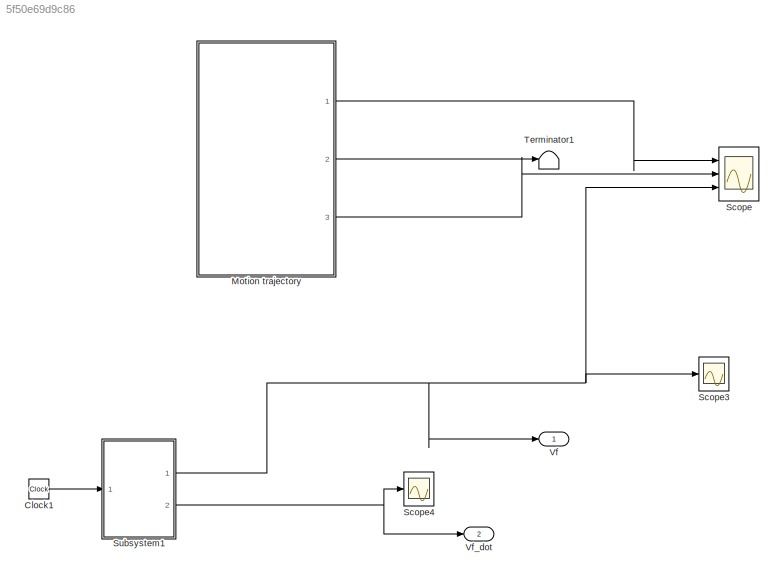
MODEL slx_5f50e69d9c86
KIND model
CONFIG AbsTol = auto
CONFIG EnableMultiTasking = off
CONFIG FixedStep = 1e-3
CONFIG MaxStep = 1e-1
CONFIG MinStep = auto
CONFIG RelTol = 1e-3
CONFIG SampleTimeConstraint = Unconstrained
CONFIG SolverName = VariableStepAuto
CONFIG StartTime = 0.0
CONFIG StopTime = 200
BLOCK [Clock] Clock1
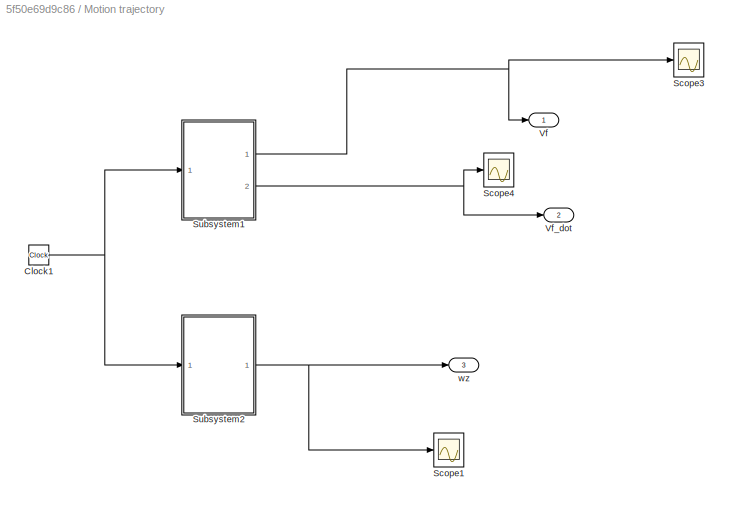
BLOCK [SubSystem] Motion trajectory
  Ports = [0, 3]
  RequestExecContextInheritance = off
BLOCK [Clock] Motion trajectory/Clock1
BLOCK [Scope] Motion trajectory/Scope1
  Floating = off
  NumInputPorts = 1
  Ports = [1]
  ScopeSpecificationString = Simulink.scopes.TimeScopeBlockCfg('CurrentConfiguration', extmgr.ConfigurationSet(extmgr.Configuration('Core','General UI',true),extmgr.Configuration('Core','Source UI',true),extmgr.Configuration('Sources','WiredSimulink',true,'DataLoggingVariableName','ScopeData1'),extmgr.Configuration('Visuals','Time Domain',true,'SerializedDisplays',{struct('MinYLimReal','-0.58333','MaxYLimReal','0.58333','YLab...<+1486ch>
BLOCK [Scope] Motion trajectory/Scope3
  Floating = off
  NumInputPorts = 1
  Ports = [1]
  ScopeSpecificationString = Simulink.scopes.TimeScopeBlockCfg('CurrentConfiguration', extmgr.ConfigurationSet(extmgr.Configuration('Core','General UI',true),extmgr.Configuration('Core','Source UI',true),extmgr.Configuration('Sources','WiredSimulink',true,'DataLoggingVariableName','ScopeData1'),extmgr.Configuration('Visuals','Time Domain',true,'SerializedDisplays',{struct('MinYLimReal','-1.01629','MaxYLimReal','9.14659','YLab...<+1489ch>
BLOCK [Scope] Motion trajectory/Scope4
  Floating = off
  NumInputPorts = 1
  Ports = [1]
  ScopeSpecificationString = Simulink.scopes.TimeScopeBlockCfg('CurrentConfiguration', extmgr.ConfigurationSet(extmgr.Configuration('Core','General UI',true),extmgr.Configuration('Core','Source UI',true),extmgr.Configuration('Sources','WiredSimulink',true,'DataLoggingVariableName','ScopeData2'),extmgr.Configuration('Visuals','Time Domain',true,'SerializedDisplays',{struct('MinYLimReal','-3.44501','MaxYLimReal','3.58278','YLab...<+1501ch>
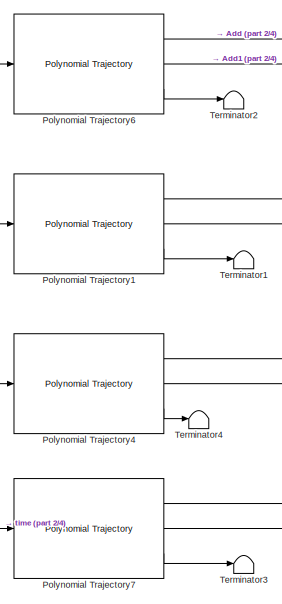
[diagram: Motion trajectory/Subsystem1 - part 1/4, top center region]
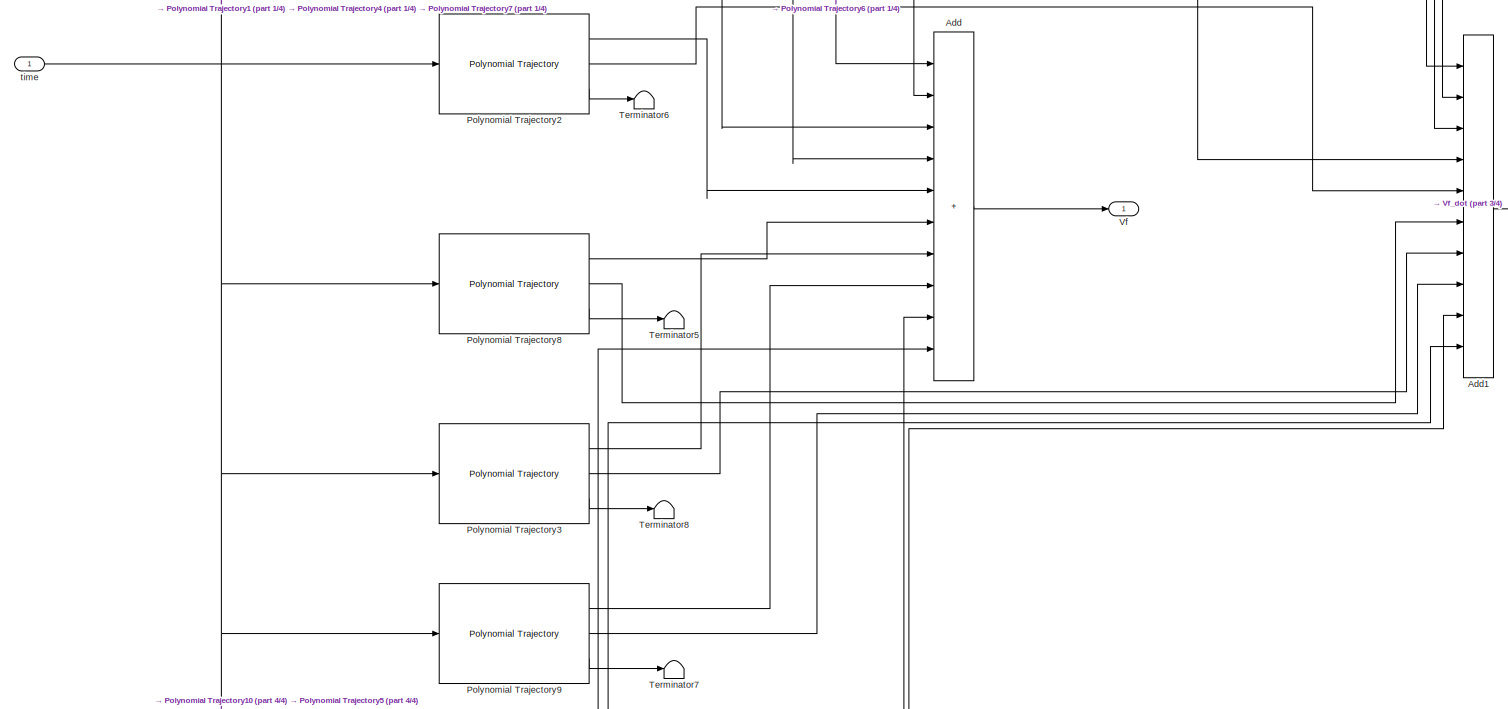
[diagram: Motion trajectory/Subsystem1 - part 2/4, full width, middle band]
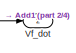
[diagram: Motion trajectory/Subsystem1 - part 3/4, middle right region]
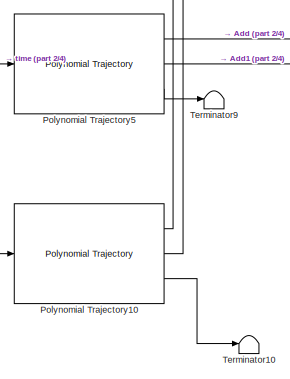
[diagram: Motion trajectory/Subsystem1 - part 4/4, bottom center region]
BLOCK [SubSystem] Motion trajectory/Subsystem1
  Ports = [1, 2]
  RequestExecContextInheritance = off
BLOCK [Sum] Motion trajectory/Subsystem1/Add
  IconShape = rectangular
  Inputs = ++++++++++
  Ports = [10, 1]
BLOCK [Sum] Motion trajectory/Subsystem1/Add1
  IconShape = rectangular
  Inputs = ++++++++++
  Ports = [10, 1]
BLOCK [Reference] Motion trajectory/Subsystem1/Polynomial Trajectory1  REF=robotcorelib/Polynomial Trajectory
  Ports = [1, 3]
  SourceBlock = robotcorelib/Polynomial Trajectory
  SourceProductBaseCode = NV,RO,RR,UV
  SourceType = robotics.slcore.internal.block.PolyTrajSys
BLOCK [Reference] Motion trajectory/Subsystem1/Polynomial Trajectory10  REF=robotcorelib/Polynomial Trajectory
  Ports = [1, 3]
  SourceBlock = robotcorelib/Polynomial Trajectory
  SourceProductBaseCode = NV,RO,RR,UV
  SourceType = robotics.slcore.internal.block.PolyTrajSys
BLOCK [Reference] Motion trajectory/Subsystem1/Polynomial Trajectory2  REF=robotcorelib/Polynomial Trajectory
  Ports = [1, 3]
  SourceBlock = robotcorelib/Polynomial Trajectory
  SourceProductBaseCode = NV,RO,RR,UV
  SourceType = robotics.slcore.internal.block.PolyTrajSys
BLOCK [Reference] Motion trajectory/Subsystem1/Polynomial Trajectory3  REF=robotcorelib/Polynomial Trajectory
  Ports = [1, 3]
  SourceBlock = robotcorelib/Polynomial Trajectory
  SourceProductBaseCode = NV,RO,RR,UV
  SourceType = robotics.slcore.internal.block.PolyTrajSys
BLOCK [Reference] Motion trajectory/Subsystem1/Polynomial Trajectory4  REF=robotcorelib/Polynomial Trajectory
  Ports = [1, 3]
  SourceBlock = robotcorelib/Polynomial Trajectory
  SourceProductBaseCode = NV,RO,RR,UV
  SourceType = robotics.slcore.internal.block.PolyTrajSys
BLOCK [Reference] Motion trajectory/Subsystem1/Polynomial Trajectory5  REF=robotcorelib/Polynomial Trajectory
  Ports = [1, 3]
  SourceBlock = robotcorelib/Polynomial Trajectory
  SourceProductBaseCode = NV,RO,RR,UV
  SourceType = robotics.slcore.internal.block.PolyTrajSys
BLOCK [Reference] Motion trajectory/Subsystem1/Polynomial Trajectory6  REF=robotcorelib/Polynomial Trajectory
  Ports = [1, 3]
  SourceBlock = robotcorelib/Polynomial Trajectory
  SourceProductBaseCode = NV,RO,RR,UV
  SourceType = robotics.slcore.internal.block.PolyTrajSys
BLOCK [Reference] Motion trajectory/Subsystem1/Polynomial Trajectory7  REF=robotcorelib/Polynomial Trajectory
  Ports = [1, 3]
  SourceBlock = robotcorelib/Polynomial Trajectory
  SourceProductBaseCode = NV,RO,RR,UV
  SourceType = robotics.slcore.internal.block.PolyTrajSys
BLOCK [Reference] Motion trajectory/Subsystem1/Polynomial Trajectory8  REF=robotcorelib/Polynomial Trajectory
  Ports = [1, 3]
  SourceBlock = robotcorelib/Polynomial Trajectory
  SourceProductBaseCode = NV,RO,RR,UV
  SourceType = robotics.slcore.internal.block.PolyTrajSys
BLOCK [Reference] Motion trajectory/Subsystem1/Polynomial Trajectory9  REF=robotcorelib/Polynomial Trajectory
  Ports = [1, 3]
  SourceBlock = robotcorelib/Polynomial Trajectory
  SourceProductBaseCode = NV,RO,RR,UV
  SourceType = robotics.slcore.internal.block.PolyTrajSys
BLOCK [Terminator] Motion trajectory/Subsystem1/Terminator1
BLOCK [Terminator] Motion trajectory/Subsystem1/Terminator10
BLOCK [Terminator] Motion trajectory/Subsystem1/Terminator2
BLOCK [Terminator] Motion trajectory/Subsystem1/Terminator3
BLOCK [Terminator] Motion trajectory/Subsystem1/Terminator4
BLOCK [Terminator] Motion trajectory/Subsystem1/Terminator5
BLOCK [Terminator] Motion trajectory/Subsystem1/Terminator6
BLOCK [Terminator] Motion trajectory/Subsystem1/Terminator7
BLOCK [Terminator] Motion trajectory/Subsystem1/Terminator8
BLOCK [Terminator] Motion trajectory/Subsystem1/Terminator9
BLOCK [Outport] Motion trajectory/Subsystem1/Vf
BLOCK [Outport] Motion trajectory/Subsystem1/Vf_dot
  Port = 2
BLOCK [Inport] Motion trajectory/Subsystem1/time
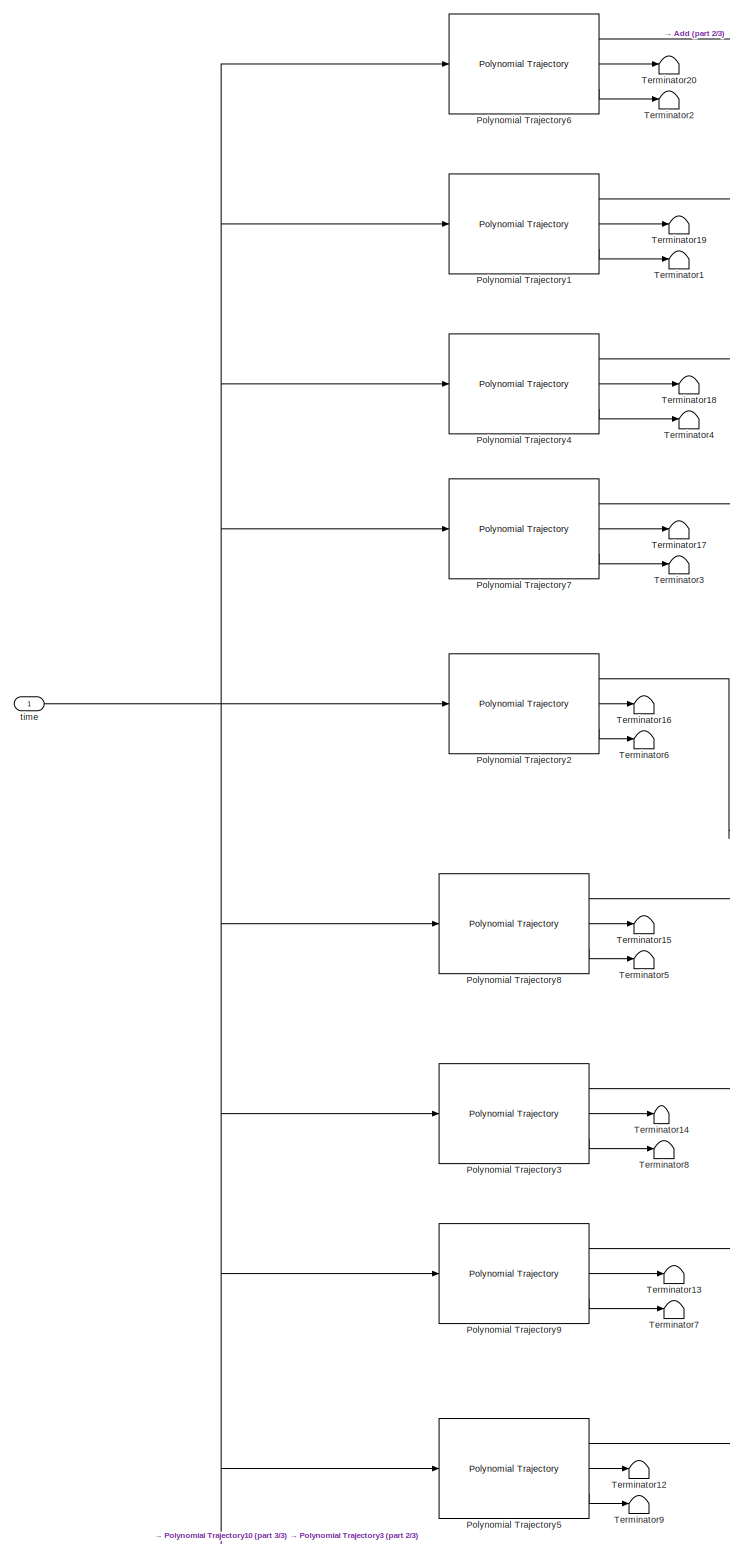
[diagram: Motion trajectory/Subsystem2 - part 1/3, left side, full height]
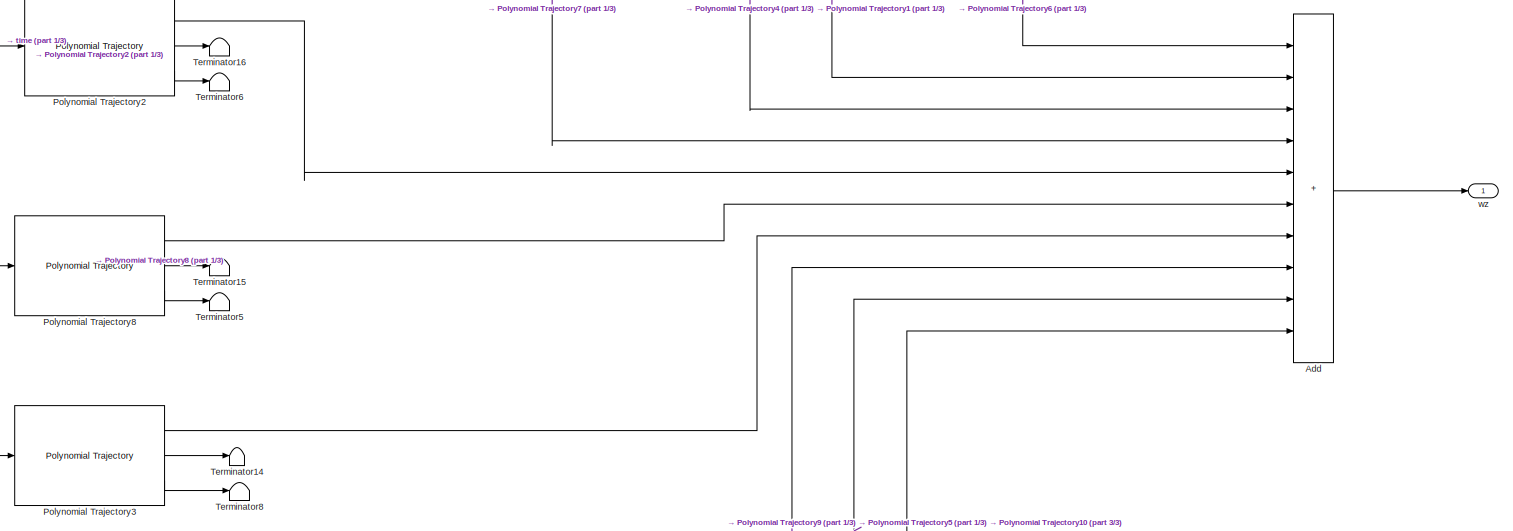
[diagram: Motion trajectory/Subsystem2 - part 2/3, full width, middle band]
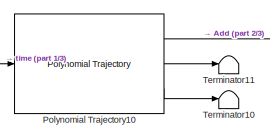
[diagram: Motion trajectory/Subsystem2 - part 3/3, bottom left region]
BLOCK [SubSystem] Motion trajectory/Subsystem2
  Ports = [1, 1]
  RequestExecContextInheritance = off
BLOCK [Sum] Motion trajectory/Subsystem2/Add
  IconShape = rectangular
  Inputs = ++++++++++
  Ports = [10, 1]
BLOCK [Reference] Motion trajectory/Subsystem2/Polynomial Trajectory1  REF=robotcorelib/Polynomial Trajectory
  Ports = [1, 3]
  SourceBlock = robotcorelib/Polynomial Trajectory
  SourceProductBaseCode = NV,RO,RR,UV
  SourceType = robotics.slcore.internal.block.PolyTrajSys
BLOCK [Reference] Motion trajectory/Subsystem2/Polynomial Trajectory10  REF=robotcorelib/Polynomial Trajectory
  Ports = [1, 3]
  SourceBlock = robotcorelib/Polynomial Trajectory
  SourceProductBaseCode = NV,RO,RR,UV
  SourceType = robotics.slcore.internal.block.PolyTrajSys
BLOCK [Reference] Motion trajectory/Subsystem2/Polynomial Trajectory2  REF=robotcorelib/Polynomial Trajectory
  Ports = [1, 3]
  SourceBlock = robotcorelib/Polynomial Trajectory
  SourceProductBaseCode = NV,RO,RR,UV
  SourceType = robotics.slcore.internal.block.PolyTrajSys
BLOCK [Reference] Motion trajectory/Subsystem2/Polynomial Trajectory3  REF=robotcorelib/Polynomial Trajectory
  Ports = [1, 3]
  SourceBlock = robotcorelib/Polynomial Trajectory
  SourceProductBaseCode = NV,RO,RR,UV
  SourceType = robotics.slcore.internal.block.PolyTrajSys
BLOCK [Reference] Motion trajectory/Subsystem2/Polynomial Trajectory4  REF=robotcorelib/Polynomial Trajectory
  Ports = [1, 3]
  SourceBlock = robotcorelib/Polynomial Trajectory
  SourceProductBaseCode = NV,RO,RR,UV
  SourceType = robotics.slcore.internal.block.PolyTrajSys
BLOCK [Reference] Motion trajectory/Subsystem2/Polynomial Trajectory5  REF=robotcorelib/Polynomial Trajectory
  Ports = [1, 3]
  SourceBlock = robotcorelib/Polynomial Trajectory
  SourceProductBaseCode = NV,RO,RR,UV
  SourceType = robotics.slcore.internal.block.PolyTrajSys
BLOCK [Reference] Motion trajectory/Subsystem2/Polynomial Trajectory6  REF=robotcorelib/Polynomial Trajectory
  Ports = [1, 3]
  SourceBlock = robotcorelib/Polynomial Trajectory
  SourceProductBaseCode = NV,RO,RR,UV
  SourceType = robotics.slcore.internal.block.PolyTrajSys
BLOCK [Reference] Motion trajectory/Subsystem2/Polynomial Trajectory7  REF=robotcorelib/Polynomial Trajectory
  Ports = [1, 3]
  SourceBlock = robotcorelib/Polynomial Trajectory
  SourceProductBaseCode = NV,RO,RR,UV
  SourceType = robotics.slcore.internal.block.PolyTrajSys
BLOCK [Reference] Motion trajectory/Subsystem2/Polynomial Trajectory8  REF=robotcorelib/Polynomial Trajectory
  Ports = [1, 3]
  SourceBlock = robotcorelib/Polynomial Trajectory
  SourceProductBaseCode = NV,RO,RR,UV
  SourceType = robotics.slcore.internal.block.PolyTrajSys
BLOCK [Reference] Motion trajectory/Subsystem2/Polynomial Trajectory9  REF=robotcorelib/Polynomial Trajectory
  Ports = [1, 3]
  SourceBlock = robotcorelib/Polynomial Trajectory
  SourceProductBaseCode = NV,RO,RR,UV
  SourceType = robotics.slcore.internal.block.PolyTrajSys
BLOCK [Terminator] Motion trajectory/Subsystem2/Terminator1
BLOCK [Terminator] Motion trajectory/Subsystem2/Terminator10
BLOCK [Terminator] Motion trajectory/Subsystem2/Terminator11
BLOCK [Terminator] Motion trajectory/Subsystem2/Terminator12
BLOCK [Terminator] Motion trajectory/Subsystem2/Terminator13
BLOCK [Terminator] Motion trajectory/Subsystem2/Terminator14
BLOCK [Terminator] Motion trajectory/Subsystem2/Terminator15
BLOCK [Terminator] Motion trajectory/Subsystem2/Terminator16
BLOCK [Terminator] Motion trajectory/Subsystem2/Terminator17
BLOCK [Terminator] Motion trajectory/Subsystem2/Terminator18
BLOCK [Terminator] Motion trajectory/Subsystem2/Terminator19
BLOCK [Terminator] Motion trajectory/Subsystem2/Terminator2
BLOCK [Terminator] Motion trajectory/Subsystem2/Terminator20
BLOCK [Terminator] Motion trajectory/Subsystem2/Terminator3
BLOCK [Terminator] Motion trajectory/Subsystem2/Terminator4
BLOCK [Terminator] Motion trajectory/Subsystem2/Terminator5
BLOCK [Terminator] Motion trajectory/Subsystem2/Terminator6
BLOCK [Terminator] Motion trajectory/Subsystem2/Terminator7
BLOCK [Terminator] Motion trajectory/Subsystem2/Terminator8
BLOCK [Terminator] Motion trajectory/Subsystem2/Terminator9
BLOCK [Inport] Motion trajectory/Subsystem2/time
BLOCK [Outport] Motion trajectory/Subsystem2/wz
BLOCK [Outport] Motion trajectory/Vf
BLOCK [Outport] Motion trajectory/Vf_dot
  Port = 2
BLOCK [Outport] Motion trajectory/wz
  Port = 3
BLOCK [Scope] Scope
  Floating = off
  NumInputPorts = 3
  Ports = [3]
  ScopeSpecificationString = Simulink.scopes.TimeScopeBlockCfg('CurrentConfiguration', extmgr.ConfigurationSet(extmgr.Configuration('Core','General UI',true),extmgr.Configuration('Core','Source UI',true),extmgr.Configuration('Sources','WiredSimulink',true,'DataLoggingVariableName','ScopeData1'),extmgr.Configuration('Visuals','Time Domain',true,'SerializedDisplays',{struct('MinYLimReal','-1.5268','MaxYLimReal','9.409','YLabelR...<+1592ch>
BLOCK [Scope] Scope3
  Floating = off
  NumInputPorts = 1
  Ports = [1]
  ScopeSpecificationString = Simulink.scopes.TimeScopeBlockCfg('CurrentConfiguration', extmgr.ConfigurationSet(extmgr.Configuration('Core','General UI',true),extmgr.Configuration('Core','Source UI',true),extmgr.Configuration('Sources','WiredSimulink',true,'DataLoggingVariableName','ScopeData1'),extmgr.Configuration('Visuals','Time Domain',true,'SerializedDisplays',{struct('MinYLimReal','-1.01629','MaxYLimReal','9.14659','YLab...<+1489ch>
BLOCK [Scope] Scope4
  Floating = off
  NumInputPorts = 1
  Ports = [1]
  ScopeSpecificationString = Simulink.scopes.TimeScopeBlockCfg('CurrentConfiguration', extmgr.ConfigurationSet(extmgr.Configuration('Core','General UI',true),extmgr.Configuration('Core','Source UI',true),extmgr.Configuration('Sources','WiredSimulink',true,'DataLoggingVariableName','ScopeData2'),extmgr.Configuration('Visuals','Time Domain',true,'SerializedDisplays',{struct('MinYLimReal','-3.44501','MaxYLimReal','3.58278','YLab...<+1501ch>
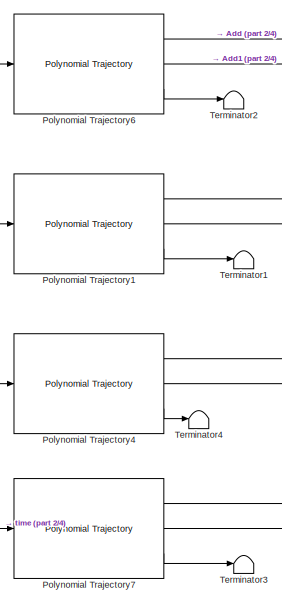
[diagram: Subsystem1 - part 1/4, top center region]
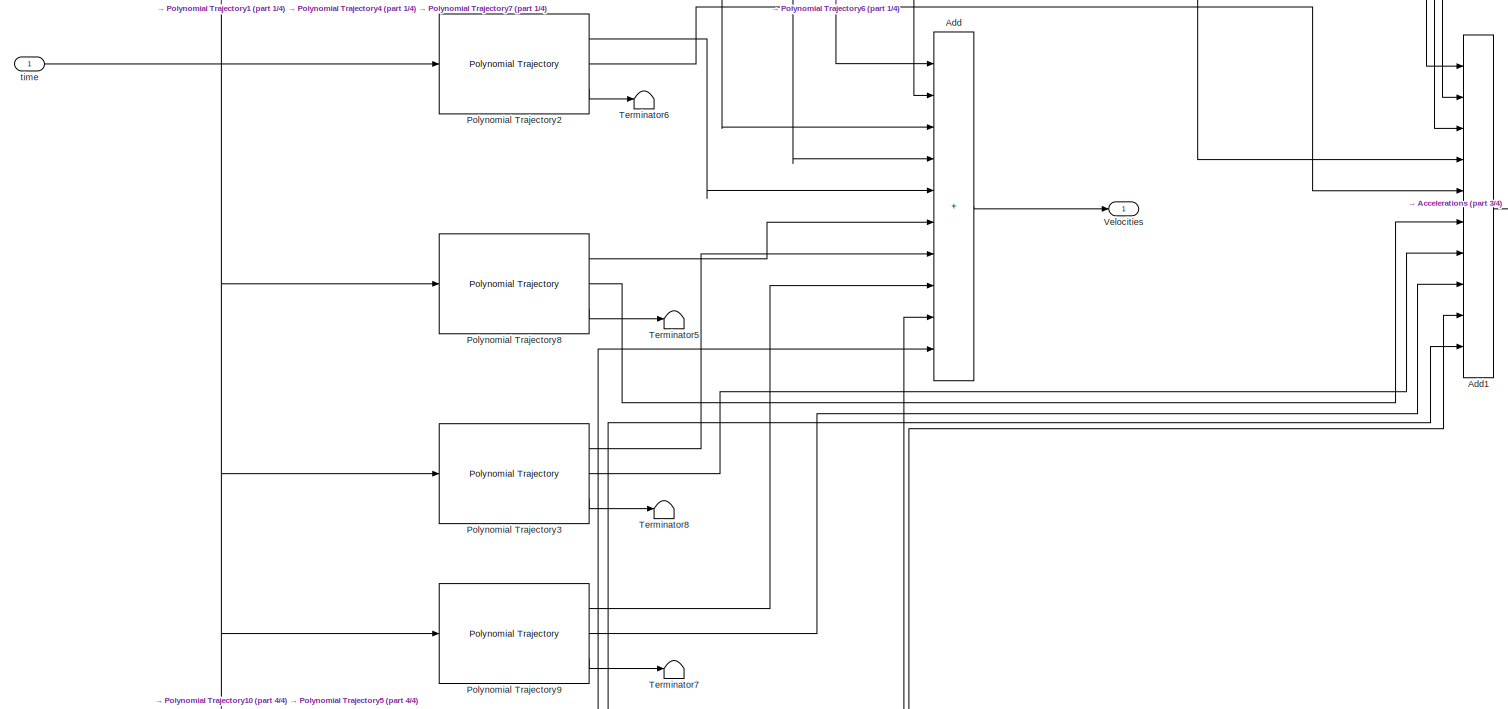
[diagram: Subsystem1 - part 2/4, full width, middle band]
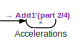
[diagram: Subsystem1 - part 3/4, middle right region]
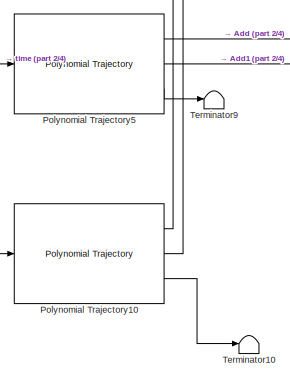
[diagram: Subsystem1 - part 4/4, bottom center region]
BLOCK [SubSystem] Subsystem1
  Ports = [1, 2]
  RequestExecContextInheritance = off
BLOCK [Outport] Subsystem1/Accelerations
  Port = 2
BLOCK [Sum] Subsystem1/Add
  IconShape = rectangular
  Inputs = ++++++++++
  Ports = [10, 1]
BLOCK [Sum] Subsystem1/Add1
  IconShape = rectangular
  Inputs = ++++++++++
  Ports = [10, 1]
BLOCK [Reference] Subsystem1/Polynomial Trajectory1  REF=robotcorelib/Polynomial Trajectory
  Ports = [1, 3]
  SourceBlock = robotcorelib/Polynomial Trajectory
  SourceProductBaseCode = NV,RO,RR,UV
  SourceType = robotics.slcore.internal.block.PolyTrajSys
BLOCK [Reference] Subsystem1/Polynomial Trajectory10  REF=robotcorelib/Polynomial Trajectory
  Ports = [1, 3]
  SourceBlock = robotcorelib/Polynomial Trajectory
  SourceProductBaseCode = NV,RO,RR,UV
  SourceType = robotics.slcore.internal.block.PolyTrajSys
BLOCK [Reference] Subsystem1/Polynomial Trajectory2  REF=robotcorelib/Polynomial Trajectory
  Ports = [1, 3]
  SourceBlock = robotcorelib/Polynomial Trajectory
  SourceProductBaseCode = NV,RO,RR,UV
  SourceType = robotics.slcore.internal.block.PolyTrajSys
BLOCK [Reference] Subsystem1/Polynomial Trajectory3  REF=robotcorelib/Polynomial Trajectory
  Ports = [1, 3]
  SourceBlock = robotcorelib/Polynomial Trajectory
  SourceProductBaseCode = NV,RO,RR,UV
  SourceType = robotics.slcore.internal.block.PolyTrajSys
BLOCK [Reference] Subsystem1/Polynomial Trajectory4  REF=robotcorelib/Polynomial Trajectory
  Ports = [1, 3]
  SourceBlock = robotcorelib/Polynomial Trajectory
  SourceProductBaseCode = NV,RO,RR,UV
  SourceType = robotics.slcore.internal.block.PolyTrajSys
BLOCK [Reference] Subsystem1/Polynomial Trajectory5  REF=robotcorelib/Polynomial Trajectory
  Ports = [1, 3]
  SourceBlock = robotcorelib/Polynomial Trajectory
  SourceProductBaseCode = NV,RO,RR,UV
  SourceType = robotics.slcore.internal.block.PolyTrajSys
BLOCK [Reference] Subsystem1/Polynomial Trajectory6  REF=robotcorelib/Polynomial Trajectory
  Ports = [1, 3]
  SourceBlock = robotcorelib/Polynomial Trajectory
  SourceProductBaseCode = NV,RO,RR,UV
  SourceType = robotics.slcore.internal.block.PolyTrajSys
BLOCK [Reference] Subsystem1/Polynomial Trajectory7  REF=robotcorelib/Polynomial Trajectory
  Ports = [1, 3]
  SourceBlock = robotcorelib/Polynomial Trajectory
  SourceProductBaseCode = NV,RO,RR,UV
  SourceType = robotics.slcore.internal.block.PolyTrajSys
BLOCK [Reference] Subsystem1/Polynomial Trajectory8  REF=robotcorelib/Polynomial Trajectory
  Ports = [1, 3]
  SourceBlock = robotcorelib/Polynomial Trajectory
  SourceProductBaseCode = NV,RO,RR,UV
  SourceType = robotics.slcore.internal.block.PolyTrajSys
BLOCK [Reference] Subsystem1/Polynomial Trajectory9  REF=robotcorelib/Polynomial Trajectory
  Ports = [1, 3]
  SourceBlock = robotcorelib/Polynomial Trajectory
  SourceProductBaseCode = NV,RO,RR,UV
  SourceType = robotics.slcore.internal.block.PolyTrajSys
BLOCK [Terminator] Subsystem1/Terminator1
BLOCK [Terminator] Subsystem1/Terminator10
BLOCK [Terminator] Subsystem1/Terminator2
BLOCK [Terminator] Subsystem1/Terminator3
BLOCK [Terminator] Subsystem1/Terminator4
BLOCK [Terminator] Subsystem1/Terminator5
BLOCK [Terminator] Subsystem1/Terminator6
BLOCK [Terminator] Subsystem1/Terminator7
BLOCK [Terminator] Subsystem1/Terminator8
BLOCK [Terminator] Subsystem1/Terminator9
BLOCK [Outport] Subsystem1/Velocities
BLOCK [Inport] Subsystem1/time
BLOCK [Terminator] Terminator1
BLOCK [Outport] Vf
BLOCK [Outport] Vf_dot
  Port = 2
LINE Clock1:1 -> Subsystem1:1
NET Motion trajectory/Clock1:1 -> Motion trajectory/Subsystem1:1, Motion trajectory/Subsystem2:1
LINE Motion trajectory/Subsystem1/Add1:1 -> Motion trajectory/Subsystem1/Vf_dot:1
LINE Motion trajectory/Subsystem1/Add:1 -> Motion trajectory/Subsystem1/Vf:1
LINE Motion trajectory/Subsystem1/Polynomial Trajectory10:1 -> Motion trajectory/Subsystem1/Add:10
LINE Motion trajectory/Subsystem1/Polynomial Trajectory10:2 -> Motion trajectory/Subsystem1/Add1:10
LINE Motion trajectory/Subsystem1/Polynomial Trajectory10:3 -> Motion trajectory/Subsystem1/Terminator10:1
LINE Motion trajectory/Subsystem1/Polynomial Trajectory1:1 -> Motion trajectory/Subsystem1/Add:2
LINE Motion trajectory/Subsystem1/Polynomial Trajectory1:2 -> Motion trajectory/Subsystem1/Add1:2
LINE Motion trajectory/Subsystem1/Polynomial Trajectory1:3 -> Motion trajectory/Subsystem1/Terminator1:1
LINE Motion trajectory/Subsystem1/Polynomial Trajectory2:1 -> Motion trajectory/Subsystem1/Add:5
LINE Motion trajectory/Subsystem1/Polynomial Trajectory2:2 -> Motion trajectory/Subsystem1/Add1:5
LINE Motion trajectory/Subsystem1/Polynomial Trajectory2:3 -> Motion trajectory/Subsystem1/Terminator6:1
LINE Motion trajectory/Subsystem1/Polynomial Trajectory3:1 -> Motion trajectory/Subsystem1/Add:7
LINE Motion trajectory/Subsystem1/Polynomial Trajectory3:2 -> Motion trajectory/Subsystem1/Add1:7
LINE Motion trajectory/Subsystem1/Polynomial Trajectory3:3 -> Motion trajectory/Subsystem1/Terminator8:1
LINE Motion trajectory/Subsystem1/Polynomial Trajectory4:1 -> Motion trajectory/Subsystem1/Add:3
LINE Motion trajectory/Subsystem1/Polynomial Trajectory4:2 -> Motion trajectory/Subsystem1/Add1:3
LINE Motion trajectory/Subsystem1/Polynomial Trajectory4:3 -> Motion trajectory/Subsystem1/Terminator4:1
LINE Motion trajectory/Subsystem1/Polynomial Trajectory5:1 -> Motion trajectory/Subsystem1/Add:9
LINE Motion trajectory/Subsystem1/Polynomial Trajectory5:2 -> Motion trajectory/Subsystem1/Add1:9
LINE Motion trajectory/Subsystem1/Polynomial Trajectory5:3 -> Motion trajectory/Subsystem1/Terminator9:1
LINE Motion trajectory/Subsystem1/Polynomial Trajectory6:1 -> Motion trajectory/Subsystem1/Add:1
LINE Motion trajectory/Subsystem1/Polynomial Trajectory6:2 -> Motion trajectory/Subsystem1/Add1:1
LINE Motion trajectory/Subsystem1/Polynomial Trajectory6:3 -> Motion trajectory/Subsystem1/Terminator2:1
LINE Motion trajectory/Subsystem1/Polynomial Trajectory7:1 -> Motion trajectory/Subsystem1/Add:4
LINE Motion trajectory/Subsystem1/Polynomial Trajectory7:2 -> Motion trajectory/Subsystem1/Add1:4
LINE Motion trajectory/Subsystem1/Polynomial Trajectory7:3 -> Motion trajectory/Subsystem1/Terminator3:1
LINE Motion trajectory/Subsystem1/Polynomial Trajectory8:1 -> Motion trajectory/Subsystem1/Add:6
LINE Motion trajectory/Subsystem1/Polynomial Trajectory8:2 -> Motion trajectory/Subsystem1/Add1:6
LINE Motion trajectory/Subsystem1/Polynomial Trajectory8:3 -> Motion trajectory/Subsystem1/Terminator5:1
LINE Motion trajectory/Subsystem1/Polynomial Trajectory9:1 -> Motion trajectory/Subsystem1/Add:8
LINE Motion trajectory/Subsystem1/Polynomial Trajectory9:2 -> Motion trajectory/Subsystem1/Add1:8
LINE Motion trajectory/Subsystem1/Polynomial Trajectory9:3 -> Motion trajectory/Subsystem1/Terminator7:1
NET Motion trajectory/Subsystem1/time:1 -> Motion trajectory/Subsystem1/Polynomial Trajectory10:1, Motion trajectory/Subsystem1/Polynomial Trajectory1:1, Motion trajectory/Subsystem1/Polynomial Trajectory2:1, Motion trajectory/Subsystem1/Polynomial Trajectory3:1, Motion trajectory/Subsystem1/Polynomial Trajectory4:1, Motion trajectory/Subsystem1/Polynomial Trajectory5:1, Motion trajectory/Subsystem1/Polynomial Trajectory6:1, Motion trajectory/Subsystem1/Polynomial Trajectory7:1, Motion trajectory/Subsystem1/Polynomial Trajectory8:1, Motion trajectory/Subsystem1/Polynomial Trajectory9:1
NET Motion trajectory/Subsystem1:1 -> Motion trajectory/Scope3:1, Motion trajectory/Vf:1
NET Motion trajectory/Subsystem1:2 -> Motion trajectory/Scope4:1, Motion trajectory/Vf_dot:1
LINE Motion trajectory/Subsystem2/Add:1 -> Motion trajectory/Subsystem2/wz:1
LINE Motion trajectory/Subsystem2/Polynomial Trajectory10:1 -> Motion trajectory/Subsystem2/Add:10
LINE Motion trajectory/Subsystem2/Polynomial Trajectory10:2 -> Motion trajectory/Subsystem2/Terminator11:1
LINE Motion trajectory/Subsystem2/Polynomial Trajectory10:3 -> Motion trajectory/Subsystem2/Terminator10:1
LINE Motion trajectory/Subsystem2/Polynomial Trajectory1:1 -> Motion trajectory/Subsystem2/Add:2
LINE Motion trajectory/Subsystem2/Polynomial Trajectory1:2 -> Motion trajectory/Subsystem2/Terminator19:1
LINE Motion trajectory/Subsystem2/Polynomial Trajectory1:3 -> Motion trajectory/Subsystem2/Terminator1:1
LINE Motion trajectory/Subsystem2/Polynomial Trajectory2:1 -> Motion trajectory/Subsystem2/Add:5
LINE Motion trajectory/Subsystem2/Polynomial Trajectory2:2 -> Motion trajectory/Subsystem2/Terminator16:1
LINE Motion trajectory/Subsystem2/Polynomial Trajectory2:3 -> Motion trajectory/Subsystem2/Terminator6:1
LINE Motion trajectory/Subsystem2/Polynomial Trajectory3:1 -> Motion trajectory/Subsystem2/Add:7
LINE Motion trajectory/Subsystem2/Polynomial Trajectory3:2 -> Motion trajectory/Subsystem2/Terminator14:1
LINE Motion trajectory/Subsystem2/Polynomial Trajectory3:3 -> Motion trajectory/Subsystem2/Terminator8:1
LINE Motion trajectory/Subsystem2/Polynomial Trajectory4:1 -> Motion trajectory/Subsystem2/Add:3
LINE Motion trajectory/Subsystem2/Polynomial Trajectory4:2 -> Motion trajectory/Subsystem2/Terminator18:1
LINE Motion trajectory/Subsystem2/Polynomial Trajectory4:3 -> Motion trajectory/Subsystem2/Terminator4:1
LINE Motion trajectory/Subsystem2/Polynomial Trajectory5:1 -> Motion trajectory/Subsystem2/Add:9
LINE Motion trajectory/Subsystem2/Polynomial Trajectory5:2 -> Motion trajectory/Subsystem2/Terminator12:1
LINE Motion trajectory/Subsystem2/Polynomial Trajectory5:3 -> Motion trajectory/Subsystem2/Terminator9:1
LINE Motion trajectory/Subsystem2/Polynomial Trajectory6:1 -> Motion trajectory/Subsystem2/Add:1
LINE Motion trajectory/Subsystem2/Polynomial Trajectory6:2 -> Motion trajectory/Subsystem2/Terminator20:1
LINE Motion trajectory/Subsystem2/Polynomial Trajectory6:3 -> Motion trajectory/Subsystem2/Terminator2:1
LINE Motion trajectory/Subsystem2/Polynomial Trajectory7:1 -> Motion trajectory/Subsystem2/Add:4
LINE Motion trajectory/Subsystem2/Polynomial Trajectory7:2 -> Motion trajectory/Subsystem2/Terminator17:1
LINE Motion trajectory/Subsystem2/Polynomial Trajectory7:3 -> Motion trajectory/Subsystem2/Terminator3:1
LINE Motion trajectory/Subsystem2/Polynomial Trajectory8:1 -> Motion trajectory/Subsystem2/Add:6
LINE Motion trajectory/Subsystem2/Polynomial Trajectory8:2 -> Motion trajectory/Subsystem2/Terminator15:1
LINE Motion trajectory/Subsystem2/Polynomial Trajectory8:3 -> Motion trajectory/Subsystem2/Terminator5:1
LINE Motion trajectory/Subsystem2/Polynomial Trajectory9:1 -> Motion trajectory/Subsystem2/Add:8
LINE Motion trajectory/Subsystem2/Polynomial Trajectory9:2 -> Motion trajectory/Subsystem2/Terminator13:1
LINE Motion trajectory/Subsystem2/Polynomial Trajectory9:3 -> Motion trajectory/Subsystem2/Terminator7:1
NET Motion trajectory/Subsystem2/time:1 -> Motion trajectory/Subsystem2/Polynomial Trajectory10:1, Motion trajectory/Subsystem2/Polynomial Trajectory1:1, Motion trajectory/Subsystem2/Polynomial Trajectory2:1, Motion trajectory/Subsystem2/Polynomial Trajectory3:1, Motion trajectory/Subsystem2/Polynomial Trajectory4:1, Motion trajectory/Subsystem2/Polynomial Trajectory5:1, Motion trajectory/Subsystem2/Polynomial Trajectory6:1, Motion trajectory/Subsystem2/Polynomial Trajectory7:1, Motion trajectory/Subsystem2/Polynomial Trajectory8:1, Motion trajectory/Subsystem2/Polynomial Trajectory9:1
NET Motion trajectory/Subsystem2:1 -> Motion trajectory/Scope1:1, Motion trajectory/wz:1
LINE Motion trajectory:1 -> Scope:1
LINE Motion trajectory:2 -> Terminator1:1
LINE Motion trajectory:3 -> Scope:2
LINE Subsystem1/Add1:1 -> Subsystem1/Accelerations:1
LINE Subsystem1/Add:1 -> Subsystem1/Velocities:1
LINE Subsystem1/Polynomial Trajectory10:1 -> Subsystem1/Add:10
LINE Subsystem1/Polynomial Trajectory10:2 -> Subsystem1/Add1:10
LINE Subsystem1/Polynomial Trajectory10:3 -> Subsystem1/Terminator10:1
LINE Subsystem1/Polynomial Trajectory1:1 -> Subsystem1/Add:2
LINE Subsystem1/Polynomial Trajectory1:2 -> Subsystem1/Add1:2
LINE Subsystem1/Polynomial Trajectory1:3 -> Subsystem1/Terminator1:1
LINE Subsystem1/Polynomial Trajectory2:1 -> Subsystem1/Add:5
LINE Subsystem1/Polynomial Trajectory2:2 -> Subsystem1/Add1:5
LINE Subsystem1/Polynomial Trajectory2:3 -> Subsystem1/Terminator6:1
LINE Subsystem1/Polynomial Trajectory3:1 -> Subsystem1/Add:7
LINE Subsystem1/Polynomial Trajectory3:2 -> Subsystem1/Add1:7
LINE Subsystem1/Polynomial Trajectory3:3 -> Subsystem1/Terminator8:1
LINE Subsystem1/Polynomial Trajectory4:1 -> Subsystem1/Add:3
LINE Subsystem1/Polynomial Trajectory4:2 -> Subsystem1/Add1:3
LINE Subsystem1/Polynomial Trajectory4:3 -> Subsystem1/Terminator4:1
LINE Subsystem1/Polynomial Trajectory5:1 -> Subsystem1/Add:9
LINE Subsystem1/Polynomial Trajectory5:2 -> Subsystem1/Add1:9
LINE Subsystem1/Polynomial Trajectory5:3 -> Subsystem1/Terminator9:1
LINE Subsystem1/Polynomial Trajectory6:1 -> Subsystem1/Add:1
LINE Subsystem1/Polynomial Trajectory6:2 -> Subsystem1/Add1:1
LINE Subsystem1/Polynomial Trajectory6:3 -> Subsystem1/Terminator2:1
LINE Subsystem1/Polynomial Trajectory7:1 -> Subsystem1/Add:4
LINE Subsystem1/Polynomial Trajectory7:2 -> Subsystem1/Add1:4
LINE Subsystem1/Polynomial Trajectory7:3 -> Subsystem1/Terminator3:1
LINE Subsystem1/Polynomial Trajectory8:1 -> Subsystem1/Add:6
LINE Subsystem1/Polynomial Trajectory8:2 -> Subsystem1/Add1:6
LINE Subsystem1/Polynomial Trajectory8:3 -> Subsystem1/Terminator5:1
LINE Subsystem1/Polynomial Trajectory9:1 -> Subsystem1/Add:8
LINE Subsystem1/Polynomial Trajectory9:2 -> Subsystem1/Add1:8
LINE Subsystem1/Polynomial Trajectory9:3 -> Subsystem1/Terminator7:1
NET Subsystem1/time:1 -> Subsystem1/Polynomial Trajectory10:1, Subsystem1/Polynomial Trajectory1:1, Subsystem1/Polynomial Trajectory2:1, Subsystem1/Polynomial Trajectory3:1, Subsystem1/Polynomial Trajectory4:1, Subsystem1/Polynomial Trajectory5:1, Subsystem1/Polynomial Trajectory6:1, Subsystem1/Polynomial Trajectory7:1, Subsystem1/Polynomial Trajectory8:1, Subsystem1/Polynomial Trajectory9:1
NET Subsystem1:1 -> Scope3:1, Scope:3, Vf:1
NET Subsystem1:2 -> Scope4:1, Vf_dot:1
note: NET lines group one-source signal fan-out (src -> all destinations, sorted); 1:1 wires keep LINE
